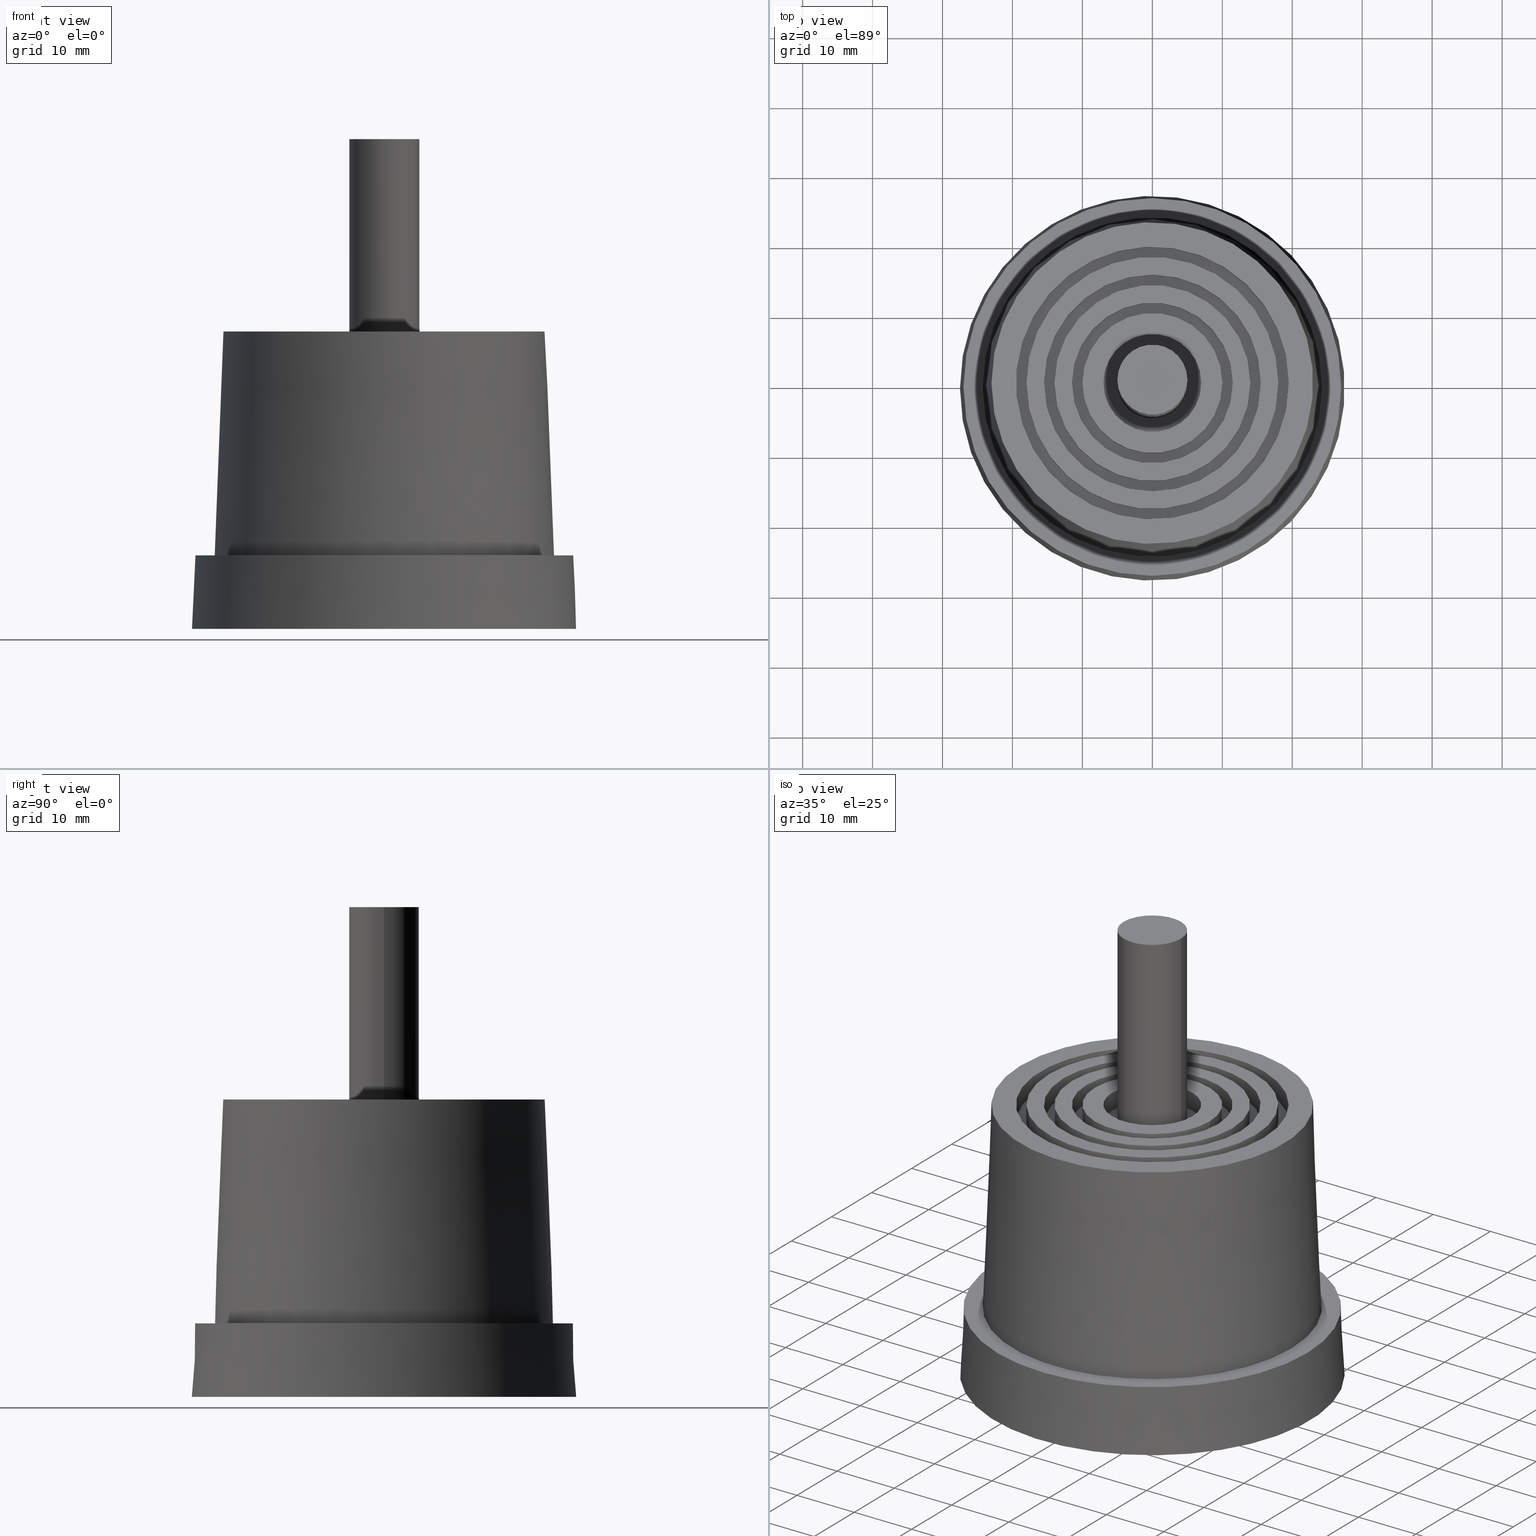
[diagram: canonical four-view strip — front | top / right | iso, engineering-drawing reading convention]
A machine part, canonical four-view strip (front | top / right | iso — engineering-drawing reading convention). The complete STEP part file that produces these views, byte-faithful:
ISO-10303-21;
HEADER;
/* Generated by software containing ST-Developer
 * from STEP Tools, Inc. (www.steptools.com) 
 */

FILE_DESCRIPTION(
/* description */ (''),
/* implementation_level */ '2;1');

FILE_NAME(
/* name */ '\\\\SYNOLOGYNAS\\web\\db2\\PRM10-4\\\X2\B3C4BA74\X0\\\DR_P
RM10-4.stp',
/* time_stamp */ '2023-04-18T11:59:53+09:00',
/* author */ ('user'),
/* organization */ (''),
/* preprocessor_version */ 'ST-DEVELOPER v15.6',
/* originating_system */ 'Autodesk Inventor 2015',
/* authorisation */ '');

FILE_SCHEMA (('AUTOMOTIVE_DESIGN { 1 0 10303 214 3 1 1 }'));
ENDSEC;

DATA;
#10=MECHANICAL_DESIGN_GEOMETRIC_PRESENTATION_REPRESENTATION('',(#13),#749);
#11=SHAPE_REPRESENTATION_RELATIONSHIP('SRR','None',#758,#12);
#12=ADVANCED_BREP_SHAPE_REPRESENTATION($,(#14),#748);
#13=STYLED_ITEM('',(#767),#14);
#14=MANIFOLD_SOLID_BREP('\X2\C194B9ACB4DC\X0\1',#413);
#15=CONICAL_SURFACE('',#482,24.25,2.2369790634377);
#16=CONICAL_SURFACE('',#487,27.5,2.72631099390626);
#17=PLANE('',#418);
#18=PLANE('',#426);
#19=PLANE('',#433);
#20=PLANE('',#440);
#21=PLANE('',#441);
#22=PLANE('',#443);
#23=PLANE('',#444);
#24=PLANE('',#447);
#25=PLANE('',#451);
#26=PLANE('',#459);
#27=PLANE('',#466);
#28=PLANE('',#473);
#29=PLANE('',#474);
#30=PLANE('',#476);
#31=PLANE('',#477);
#32=PLANE('',#480);
#33=PLANE('',#481);
#34=PLANE('',#484);
#35=PLANE('',#486);
#36=FACE_BOUND('',#109,.T.);
#37=FACE_BOUND('',#111,.T.);
#38=FACE_BOUND('',#113,.T.);
#39=FACE_BOUND('',#115,.T.);
#40=FACE_BOUND('',#117,.T.);
#41=FACE_BOUND('',#119,.T.);
#42=FACE_BOUND('',#121,.T.);
#43=FACE_BOUND('',#123,.T.);
#44=FACE_BOUND('',#125,.T.);
#45=FACE_BOUND('',#127,.T.);
#46=FACE_BOUND('',#129,.T.);
#47=FACE_BOUND('',#131,.T.);
#48=FACE_BOUND('',#133,.T.);
#49=FACE_BOUND('',#135,.T.);
#50=FACE_BOUND('',#137,.T.);
#51=FACE_BOUND('',#140,.T.);
#52=FACE_BOUND('',#142,.T.);
#53=FACE_BOUND('',#144,.T.);
#54=FACE_BOUND('',#146,.T.);
#55=FACE_BOUND('',#148,.T.);
#56=FACE_BOUND('',#150,.T.);
#57=FACE_BOUND('',#152,.T.);
#58=FACE_BOUND('',#154,.T.);
#59=FACE_BOUND('',#156,.T.);
#60=FACE_BOUND('',#158,.T.);
#61=FACE_BOUND('',#160,.T.);
#62=FACE_BOUND('',#162,.T.);
#63=FACE_BOUND('',#164,.T.);
#64=FACE_BOUND('',#166,.T.);
#65=FACE_BOUND('',#168,.T.);
#66=FACE_BOUND('',#171,.T.);
#67=FACE_BOUND('',#173,.T.);
#68=FACE_BOUND('',#175,.T.);
#69=FACE_BOUND('',#177,.T.);
#70=FACE_BOUND('',#179,.T.);
#71=FACE_OUTER_BOUND('',#108,.T.);
#72=FACE_OUTER_BOUND('',#110,.T.);
#73=FACE_OUTER_BOUND('',#112,.T.);
#74=FACE_OUTER_BOUND('',#114,.T.);
#75=FACE_OUTER_BOUND('',#116,.T.);
#76=FACE_OUTER_BOUND('',#118,.T.);
#77=FACE_OUTER_BOUND('',#120,.T.);
#78=FACE_OUTER_BOUND('',#122,.T.);
#79=FACE_OUTER_BOUND('',#124,.T.);
#80=FACE_OUTER_BOUND('',#126,.T.);
#81=FACE_OUTER_BOUND('',#128,.T.);
#82=FACE_OUTER_BOUND('',#130,.T.);
#83=FACE_OUTER_BOUND('',#132,.T.);
#84=FACE_OUTER_BOUND('',#134,.T.);
#85=FACE_OUTER_BOUND('',#136,.T.);
#86=FACE_OUTER_BOUND('',#138,.T.);
#87=FACE_OUTER_BOUND('',#139,.T.);
#88=FACE_OUTER_BOUND('',#141,.T.);
#89=FACE_OUTER_BOUND('',#143,.T.);
#90=FACE_OUTER_BOUND('',#145,.T.);
#91=FACE_OUTER_BOUND('',#147,.T.);
#92=FACE_OUTER_BOUND('',#149,.T.);
#93=FACE_OUTER_BOUND('',#151,.T.);
#94=FACE_OUTER_BOUND('',#153,.T.);
#95=FACE_OUTER_BOUND('',#155,.T.);
#96=FACE_OUTER_BOUND('',#157,.T.);
#97=FACE_OUTER_BOUND('',#159,.T.);
#98=FACE_OUTER_BOUND('',#161,.T.);
#99=FACE_OUTER_BOUND('',#163,.T.);
#100=FACE_OUTER_BOUND('',#165,.T.);
#101=FACE_OUTER_BOUND('',#167,.T.);
#102=FACE_OUTER_BOUND('',#169,.T.);
#103=FACE_OUTER_BOUND('',#170,.T.);
#104=FACE_OUTER_BOUND('',#172,.T.);
#105=FACE_OUTER_BOUND('',#174,.T.);
#106=FACE_OUTER_BOUND('',#176,.T.);
#107=FACE_OUTER_BOUND('',#178,.T.);
#108=EDGE_LOOP('',(#288));
#109=EDGE_LOOP('',(#289));
#110=EDGE_LOOP('',(#290));
#111=EDGE_LOOP('',(#291));
#112=EDGE_LOOP('',(#292));
#113=EDGE_LOOP('',(#293));
#114=EDGE_LOOP('',(#294));
#115=EDGE_LOOP('',(#295));
#116=EDGE_LOOP('',(#296));
#117=EDGE_LOOP('',(#297));
#118=EDGE_LOOP('',(#298));
#119=EDGE_LOOP('',(#299));
#120=EDGE_LOOP('',(#300));
#121=EDGE_LOOP('',(#301));
#122=EDGE_LOOP('',(#302));
#123=EDGE_LOOP('',(#303));
#124=EDGE_LOOP('',(#304));
#125=EDGE_LOOP('',(#305));
#126=EDGE_LOOP('',(#306));
#127=EDGE_LOOP('',(#307));
#128=EDGE_LOOP('',(#308));
#129=EDGE_LOOP('',(#309));
#130=EDGE_LOOP('',(#310));
#131=EDGE_LOOP('',(#311));
#132=EDGE_LOOP('',(#312));
#133=EDGE_LOOP('',(#313));
#134=EDGE_LOOP('',(#314));
#135=EDGE_LOOP('',(#315));
#136=EDGE_LOOP('',(#316));
#137=EDGE_LOOP('',(#317));
#138=EDGE_LOOP('',(#318));
#139=EDGE_LOOP('',(#319));
#140=EDGE_LOOP('',(#320));
#141=EDGE_LOOP('',(#321));
#142=EDGE_LOOP('',(#322));
#143=EDGE_LOOP('',(#323));
#144=EDGE_LOOP('',(#324));
#145=EDGE_LOOP('',(#325));
#146=EDGE_LOOP('',(#326));
#147=EDGE_LOOP('',(#327));
#148=EDGE_LOOP('',(#328));
#149=EDGE_LOOP('',(#329));
#150=EDGE_LOOP('',(#330));
#151=EDGE_LOOP('',(#331));
#152=EDGE_LOOP('',(#332));
#153=EDGE_LOOP('',(#333));
#154=EDGE_LOOP('',(#334));
#155=EDGE_LOOP('',(#335));
#156=EDGE_LOOP('',(#336));
#157=EDGE_LOOP('',(#337));
#158=EDGE_LOOP('',(#338));
#159=EDGE_LOOP('',(#339));
#160=EDGE_LOOP('',(#340));
#161=EDGE_LOOP('',(#341));
#162=EDGE_LOOP('',(#342));
#163=EDGE_LOOP('',(#343));
#164=EDGE_LOOP('',(#344));
#165=EDGE_LOOP('',(#345));
#166=EDGE_LOOP('',(#346));
#167=EDGE_LOOP('',(#347));
#168=EDGE_LOOP('',(#348));
#169=EDGE_LOOP('',(#349));
#170=EDGE_LOOP('',(#350));
#171=EDGE_LOOP('',(#351));
#172=EDGE_LOOP('',(#352));
#173=EDGE_LOOP('',(#353));
#174=EDGE_LOOP('',(#354));
#175=EDGE_LOOP('',(#355));
#176=EDGE_LOOP('',(#356));
#177=EDGE_LOOP('',(#357));
#178=EDGE_LOOP('',(#358));
#179=EDGE_LOOP('',(#359));
#180=CIRCLE('',#416,5.5);
#181=CIRCLE('',#417,5.5);
#182=CIRCLE('',#419,4.75);
#183=CIRCLE('',#421,8.5);
#184=CIRCLE('',#422,8.5);
#185=CIRCLE('',#424,11.5);
#186=CIRCLE('',#425,11.5);
#187=CIRCLE('',#428,14.5);
#188=CIRCLE('',#429,14.5);
#189=CIRCLE('',#431,17.5);
#190=CIRCLE('',#432,17.5);
#191=CIRCLE('',#435,20.5);
#192=CIRCLE('',#436,20.5);
#193=CIRCLE('',#438,23.5);
#194=CIRCLE('',#439,23.5);
#195=CIRCLE('',#442,27.5);
#196=CIRCLE('',#446,4.75);
#197=CIRCLE('',#449,7.);
#198=CIRCLE('',#450,7.);
#199=CIRCLE('',#452,5.);
#200=CIRCLE('',#454,10.);
#201=CIRCLE('',#455,10.);
#202=CIRCLE('',#457,11.5);
#203=CIRCLE('',#458,11.5);
#204=CIRCLE('',#461,14.);
#205=CIRCLE('',#462,14.);
#206=CIRCLE('',#464,15.5);
#207=CIRCLE('',#465,15.5);
#208=CIRCLE('',#468,18.);
#209=CIRCLE('',#469,18.);
#210=CIRCLE('',#471,19.5);
#211=CIRCLE('',#472,19.5);
#212=CIRCLE('',#475,23.);
#213=CIRCLE('',#479,5.);
#214=CIRCLE('',#483,24.25);
#215=CIRCLE('',#485,27.);
#216=VERTEX_POINT('',#638);
#217=VERTEX_POINT('',#640);
#218=VERTEX_POINT('',#643);
#219=VERTEX_POINT('',#646);
#220=VERTEX_POINT('',#648);
#221=VERTEX_POINT('',#651);
#222=VERTEX_POINT('',#653);
#223=VERTEX_POINT('',#657);
#224=VERTEX_POINT('',#659);
#225=VERTEX_POINT('',#662);
#226=VERTEX_POINT('',#664);
#227=VERTEX_POINT('',#668);
#228=VERTEX_POINT('',#670);
#229=VERTEX_POINT('',#673);
#230=VERTEX_POINT('',#675);
#231=VERTEX_POINT('',#679);
#232=VERTEX_POINT('',#684);
#233=VERTEX_POINT('',#688);
#234=VERTEX_POINT('',#690);
#235=VERTEX_POINT('',#693);
#236=VERTEX_POINT('',#696);
#237=VERTEX_POINT('',#698);
#238=VERTEX_POINT('',#701);
#239=VERTEX_POINT('',#703);
#240=VERTEX_POINT('',#707);
#241=VERTEX_POINT('',#709);
#242=VERTEX_POINT('',#712);
#243=VERTEX_POINT('',#714);
#244=VERTEX_POINT('',#718);
#245=VERTEX_POINT('',#720);
#246=VERTEX_POINT('',#723);
#247=VERTEX_POINT('',#725);
#248=VERTEX_POINT('',#729);
#249=VERTEX_POINT('',#734);
#250=VERTEX_POINT('',#739);
#251=VERTEX_POINT('',#742);
#252=EDGE_CURVE('',#216,#216,#180,.T.);
#253=EDGE_CURVE('',#217,#217,#181,.T.);
#254=EDGE_CURVE('',#218,#218,#182,.T.);
#255=EDGE_CURVE('',#219,#219,#183,.T.);
#256=EDGE_CURVE('',#220,#220,#184,.T.);
#257=EDGE_CURVE('',#221,#221,#185,.T.);
#258=EDGE_CURVE('',#222,#222,#186,.T.);
#259=EDGE_CURVE('',#223,#223,#187,.T.);
#260=EDGE_CURVE('',#224,#224,#188,.T.);
#261=EDGE_CURVE('',#225,#225,#189,.T.);
#262=EDGE_CURVE('',#226,#226,#190,.T.);
#263=EDGE_CURVE('',#227,#227,#191,.T.);
#264=EDGE_CURVE('',#228,#228,#192,.T.);
#265=EDGE_CURVE('',#229,#229,#193,.T.);
#266=EDGE_CURVE('',#230,#230,#194,.T.);
#267=EDGE_CURVE('',#231,#231,#195,.T.);
#268=EDGE_CURVE('',#232,#232,#196,.T.);
#269=EDGE_CURVE('',#233,#233,#197,.T.);
#270=EDGE_CURVE('',#234,#234,#198,.T.);
#271=EDGE_CURVE('',#235,#235,#199,.T.);
#272=EDGE_CURVE('',#236,#236,#200,.T.);
#273=EDGE_CURVE('',#237,#237,#201,.T.);
#274=EDGE_CURVE('',#238,#238,#202,.T.);
#275=EDGE_CURVE('',#239,#239,#203,.T.);
#276=EDGE_CURVE('',#240,#240,#204,.T.);
#277=EDGE_CURVE('',#241,#241,#205,.T.);
#278=EDGE_CURVE('',#242,#242,#206,.T.);
#279=EDGE_CURVE('',#243,#243,#207,.T.);
#280=EDGE_CURVE('',#244,#244,#208,.T.);
#281=EDGE_CURVE('',#245,#245,#209,.T.);
#282=EDGE_CURVE('',#246,#246,#210,.T.);
#283=EDGE_CURVE('',#247,#247,#211,.T.);
#284=EDGE_CURVE('',#248,#248,#212,.T.);
#285=EDGE_CURVE('',#249,#249,#213,.T.);
#286=EDGE_CURVE('',#250,#250,#214,.T.);
#287=EDGE_CURVE('',#251,#251,#215,.T.);
#288=ORIENTED_EDGE('',*,*,#252,.T.);
#289=ORIENTED_EDGE('',*,*,#253,.F.);
#290=ORIENTED_EDGE('',*,*,#252,.F.);
#291=ORIENTED_EDGE('',*,*,#254,.F.);
#292=ORIENTED_EDGE('',*,*,#255,.T.);
#293=ORIENTED_EDGE('',*,*,#256,.F.);
#294=ORIENTED_EDGE('',*,*,#257,.T.);
#295=ORIENTED_EDGE('',*,*,#258,.F.);
#296=ORIENTED_EDGE('',*,*,#257,.F.);
#297=ORIENTED_EDGE('',*,*,#255,.F.);
#298=ORIENTED_EDGE('',*,*,#259,.T.);
#299=ORIENTED_EDGE('',*,*,#260,.F.);
#300=ORIENTED_EDGE('',*,*,#261,.T.);
#301=ORIENTED_EDGE('',*,*,#262,.F.);
#302=ORIENTED_EDGE('',*,*,#261,.F.);
#303=ORIENTED_EDGE('',*,*,#259,.F.);
#304=ORIENTED_EDGE('',*,*,#263,.T.);
#305=ORIENTED_EDGE('',*,*,#264,.F.);
#306=ORIENTED_EDGE('',*,*,#265,.T.);
#307=ORIENTED_EDGE('',*,*,#266,.F.);
#308=ORIENTED_EDGE('',*,*,#265,.F.);
#309=ORIENTED_EDGE('',*,*,#263,.F.);
#310=ORIENTED_EDGE('',*,*,#267,.F.);
#311=ORIENTED_EDGE('',*,*,#266,.T.);
#312=ORIENTED_EDGE('',*,*,#264,.T.);
#313=ORIENTED_EDGE('',*,*,#262,.T.);
#314=ORIENTED_EDGE('',*,*,#260,.T.);
#315=ORIENTED_EDGE('',*,*,#258,.T.);
#316=ORIENTED_EDGE('',*,*,#254,.T.);
#317=ORIENTED_EDGE('',*,*,#268,.T.);
#318=ORIENTED_EDGE('',*,*,#268,.F.);
#319=ORIENTED_EDGE('',*,*,#269,.T.);
#320=ORIENTED_EDGE('',*,*,#270,.F.);
#321=ORIENTED_EDGE('',*,*,#269,.F.);
#322=ORIENTED_EDGE('',*,*,#271,.F.);
#323=ORIENTED_EDGE('',*,*,#272,.T.);
#324=ORIENTED_EDGE('',*,*,#273,.F.);
#325=ORIENTED_EDGE('',*,*,#274,.T.);
#326=ORIENTED_EDGE('',*,*,#275,.F.);
#327=ORIENTED_EDGE('',*,*,#274,.F.);
#328=ORIENTED_EDGE('',*,*,#272,.F.);
#329=ORIENTED_EDGE('',*,*,#276,.T.);
#330=ORIENTED_EDGE('',*,*,#277,.F.);
#331=ORIENTED_EDGE('',*,*,#278,.T.);
#332=ORIENTED_EDGE('',*,*,#279,.F.);
#333=ORIENTED_EDGE('',*,*,#278,.F.);
#334=ORIENTED_EDGE('',*,*,#276,.F.);
#335=ORIENTED_EDGE('',*,*,#280,.T.);
#336=ORIENTED_EDGE('',*,*,#281,.F.);
#337=ORIENTED_EDGE('',*,*,#282,.T.);
#338=ORIENTED_EDGE('',*,*,#283,.F.);
#339=ORIENTED_EDGE('',*,*,#282,.F.);
#340=ORIENTED_EDGE('',*,*,#280,.F.);
#341=ORIENTED_EDGE('',*,*,#284,.F.);
#342=ORIENTED_EDGE('',*,*,#283,.T.);
#343=ORIENTED_EDGE('',*,*,#281,.T.);
#344=ORIENTED_EDGE('',*,*,#279,.T.);
#345=ORIENTED_EDGE('',*,*,#277,.T.);
#346=ORIENTED_EDGE('',*,*,#275,.T.);
#347=ORIENTED_EDGE('',*,*,#271,.T.);
#348=ORIENTED_EDGE('',*,*,#285,.F.);
#349=ORIENTED_EDGE('',*,*,#285,.T.);
#350=ORIENTED_EDGE('',*,*,#273,.T.);
#351=ORIENTED_EDGE('',*,*,#270,.T.);
#352=ORIENTED_EDGE('',*,*,#286,.F.);
#353=ORIENTED_EDGE('',*,*,#284,.T.);
#354=ORIENTED_EDGE('',*,*,#287,.F.);
#355=ORIENTED_EDGE('',*,*,#286,.T.);
#356=ORIENTED_EDGE('',*,*,#256,.T.);
#357=ORIENTED_EDGE('',*,*,#253,.T.);
#358=ORIENTED_EDGE('',*,*,#267,.T.);
#359=ORIENTED_EDGE('',*,*,#287,.T.);
#360=CYLINDRICAL_SURFACE('',#415,5.5);
#361=CYLINDRICAL_SURFACE('',#420,8.5);
#362=CYLINDRICAL_SURFACE('',#423,11.5);
#363=CYLINDRICAL_SURFACE('',#427,14.5);
#364=CYLINDRICAL_SURFACE('',#430,17.5);
#365=CYLINDRICAL_SURFACE('',#434,20.5);
#366=CYLINDRICAL_SURFACE('',#437,23.5);
#367=CYLINDRICAL_SURFACE('',#445,4.75);
#368=CYLINDRICAL_SURFACE('',#448,7.);
#369=CYLINDRICAL_SURFACE('',#453,10.);
#370=CYLINDRICAL_SURFACE('',#456,11.5);
#371=CYLINDRICAL_SURFACE('',#460,14.);
#372=CYLINDRICAL_SURFACE('',#463,15.5);
#373=CYLINDRICAL_SURFACE('',#467,18.);
#374=CYLINDRICAL_SURFACE('',#470,19.5);
#375=CYLINDRICAL_SURFACE('',#478,5.);
#376=ADVANCED_FACE('',(#71,#36),#360,.F.);
#377=ADVANCED_FACE('',(#72,#37),#17,.F.);
#378=ADVANCED_FACE('',(#73,#38),#361,.T.);
#379=ADVANCED_FACE('',(#74,#39),#362,.F.);
#380=ADVANCED_FACE('',(#75,#40),#18,.F.);
#381=ADVANCED_FACE('',(#76,#41),#363,.T.);
#382=ADVANCED_FACE('',(#77,#42),#364,.F.);
#383=ADVANCED_FACE('',(#78,#43),#19,.F.);
#384=ADVANCED_FACE('',(#79,#44),#365,.T.);
#385=ADVANCED_FACE('',(#80,#45),#366,.F.);
#386=ADVANCED_FACE('',(#81,#46),#20,.F.);
#387=ADVANCED_FACE('',(#82,#47),#21,.F.);
#388=ADVANCED_FACE('',(#83,#48),#22,.F.);
#389=ADVANCED_FACE('',(#84,#49),#23,.F.);
#390=ADVANCED_FACE('',(#85,#50),#367,.F.);
#391=ADVANCED_FACE('',(#86),#24,.F.);
#392=ADVANCED_FACE('',(#87,#51),#368,.F.);
#393=ADVANCED_FACE('',(#88,#52),#25,.T.);
#394=ADVANCED_FACE('',(#89,#53),#369,.T.);
#395=ADVANCED_FACE('',(#90,#54),#370,.F.);
#396=ADVANCED_FACE('',(#91,#55),#26,.T.);
#397=ADVANCED_FACE('',(#92,#56),#371,.T.);
#398=ADVANCED_FACE('',(#93,#57),#372,.F.);
#399=ADVANCED_FACE('',(#94,#58),#27,.T.);
#400=ADVANCED_FACE('',(#95,#59),#373,.T.);
#401=ADVANCED_FACE('',(#96,#60),#374,.F.);
#402=ADVANCED_FACE('',(#97,#61),#28,.T.);
#403=ADVANCED_FACE('',(#98,#62),#29,.F.);
#404=ADVANCED_FACE('',(#99,#63),#30,.F.);
#405=ADVANCED_FACE('',(#100,#64),#31,.F.);
#406=ADVANCED_FACE('',(#101,#65),#375,.T.);
#407=ADVANCED_FACE('',(#102),#32,.T.);
#408=ADVANCED_FACE('',(#103,#66),#33,.F.);
#409=ADVANCED_FACE('',(#104,#67),#15,.T.);
#410=ADVANCED_FACE('',(#105,#68),#34,.F.);
#411=ADVANCED_FACE('',(#106,#69),#35,.F.);
#412=ADVANCED_FACE('',(#107,#70),#16,.T.);
#413=CLOSED_SHELL('',(#376,#377,#378,#379,#380,#381,#382,#383,#384,#385,
#386,#387,#388,#389,#390,#391,#392,#393,#394,#395,#396,#397,#398,#399,#400,
#401,#402,#403,#404,#405,#406,#407,#408,#409,#410,#411,#412));
#414=AXIS2_PLACEMENT_3D('placement',#636,#488,#489);
#415=AXIS2_PLACEMENT_3D('',#637,#490,#491);
#416=AXIS2_PLACEMENT_3D('',#639,#492,#493);
#417=AXIS2_PLACEMENT_3D('',#641,#494,#495);
#418=AXIS2_PLACEMENT_3D('',#642,#496,#497);
#419=AXIS2_PLACEMENT_3D('',#644,#498,#499);
#420=AXIS2_PLACEMENT_3D('',#645,#500,#501);
#421=AXIS2_PLACEMENT_3D('',#647,#502,#503);
#422=AXIS2_PLACEMENT_3D('',#649,#504,#505);
#423=AXIS2_PLACEMENT_3D('',#650,#506,#507);
#424=AXIS2_PLACEMENT_3D('',#652,#508,#509);
#425=AXIS2_PLACEMENT_3D('',#654,#510,#511);
#426=AXIS2_PLACEMENT_3D('',#655,#512,#513);
#427=AXIS2_PLACEMENT_3D('',#656,#514,#515);
#428=AXIS2_PLACEMENT_3D('',#658,#516,#517);
#429=AXIS2_PLACEMENT_3D('',#660,#518,#519);
#430=AXIS2_PLACEMENT_3D('',#661,#520,#521);
#431=AXIS2_PLACEMENT_3D('',#663,#522,#523);
#432=AXIS2_PLACEMENT_3D('',#665,#524,#525);
#433=AXIS2_PLACEMENT_3D('',#666,#526,#527);
#434=AXIS2_PLACEMENT_3D('',#667,#528,#529);
#435=AXIS2_PLACEMENT_3D('',#669,#530,#531);
#436=AXIS2_PLACEMENT_3D('',#671,#532,#533);
#437=AXIS2_PLACEMENT_3D('',#672,#534,#535);
#438=AXIS2_PLACEMENT_3D('',#674,#536,#537);
#439=AXIS2_PLACEMENT_3D('',#676,#538,#539);
#440=AXIS2_PLACEMENT_3D('',#677,#540,#541);
#441=AXIS2_PLACEMENT_3D('',#678,#542,#543);
#442=AXIS2_PLACEMENT_3D('',#680,#544,#545);
#443=AXIS2_PLACEMENT_3D('',#681,#546,#547);
#444=AXIS2_PLACEMENT_3D('',#682,#548,#549);
#445=AXIS2_PLACEMENT_3D('',#683,#550,#551);
#446=AXIS2_PLACEMENT_3D('',#685,#552,#553);
#447=AXIS2_PLACEMENT_3D('',#686,#554,#555);
#448=AXIS2_PLACEMENT_3D('',#687,#556,#557);
#449=AXIS2_PLACEMENT_3D('',#689,#558,#559);
#450=AXIS2_PLACEMENT_3D('',#691,#560,#561);
#451=AXIS2_PLACEMENT_3D('',#692,#562,#563);
#452=AXIS2_PLACEMENT_3D('',#694,#564,#565);
#453=AXIS2_PLACEMENT_3D('',#695,#566,#567);
#454=AXIS2_PLACEMENT_3D('',#697,#568,#569);
#455=AXIS2_PLACEMENT_3D('',#699,#570,#571);
#456=AXIS2_PLACEMENT_3D('',#700,#572,#573);
#457=AXIS2_PLACEMENT_3D('',#702,#574,#575);
#458=AXIS2_PLACEMENT_3D('',#704,#576,#577);
#459=AXIS2_PLACEMENT_3D('',#705,#578,#579);
#460=AXIS2_PLACEMENT_3D('',#706,#580,#581);
#461=AXIS2_PLACEMENT_3D('',#708,#582,#583);
#462=AXIS2_PLACEMENT_3D('',#710,#584,#585);
#463=AXIS2_PLACEMENT_3D('',#711,#586,#587);
#464=AXIS2_PLACEMENT_3D('',#713,#588,#589);
#465=AXIS2_PLACEMENT_3D('',#715,#590,#591);
#466=AXIS2_PLACEMENT_3D('',#716,#592,#593);
#467=AXIS2_PLACEMENT_3D('',#717,#594,#595);
#468=AXIS2_PLACEMENT_3D('',#719,#596,#597);
#469=AXIS2_PLACEMENT_3D('',#721,#598,#599);
#470=AXIS2_PLACEMENT_3D('',#722,#600,#601);
#471=AXIS2_PLACEMENT_3D('',#724,#602,#603);
#472=AXIS2_PLACEMENT_3D('',#726,#604,#605);
#473=AXIS2_PLACEMENT_3D('',#727,#606,#607);
#474=AXIS2_PLACEMENT_3D('',#728,#608,#609);
#475=AXIS2_PLACEMENT_3D('',#730,#610,#611);
#476=AXIS2_PLACEMENT_3D('',#731,#612,#613);
#477=AXIS2_PLACEMENT_3D('',#732,#614,#615);
#478=AXIS2_PLACEMENT_3D('',#733,#616,#617);
#479=AXIS2_PLACEMENT_3D('',#735,#618,#619);
#480=AXIS2_PLACEMENT_3D('',#736,#620,#621);
#481=AXIS2_PLACEMENT_3D('',#737,#622,#623);
#482=AXIS2_PLACEMENT_3D('',#738,#624,#625);
#483=AXIS2_PLACEMENT_3D('',#740,#626,#627);
#484=AXIS2_PLACEMENT_3D('',#741,#628,#629);
#485=AXIS2_PLACEMENT_3D('',#743,#630,#631);
#486=AXIS2_PLACEMENT_3D('',#744,#632,#633);
#487=AXIS2_PLACEMENT_3D('',#745,#634,#635);
#488=DIRECTION('axis',(0.,0.,1.));
#489=DIRECTION('refdir',(1.,0.,0.));
#490=DIRECTION('center_axis',(0.,0.,1.));
#491=DIRECTION('ref_axis',(1.,0.,0.));
#492=DIRECTION('center_axis',(0.,0.,1.));
#493=DIRECTION('ref_axis',(1.,0.,0.));
#494=DIRECTION('center_axis',(0.,0.,1.));
#495=DIRECTION('ref_axis',(1.,0.,0.));
#496=DIRECTION('center_axis',(0.,0.,1.));
#497=DIRECTION('ref_axis',(1.,0.,0.));
#498=DIRECTION('center_axis',(0.,0.,-1.));
#499=DIRECTION('ref_axis',(1.,0.,0.));
#500=DIRECTION('center_axis',(0.,0.,1.));
#501=DIRECTION('ref_axis',(1.,0.,0.));
#502=DIRECTION('center_axis',(0.,0.,-1.));
#503=DIRECTION('ref_axis',(1.,0.,0.));
#504=DIRECTION('center_axis',(0.,0.,-1.));
#505=DIRECTION('ref_axis',(1.,0.,0.));
#506=DIRECTION('center_axis',(0.,0.,1.));
#507=DIRECTION('ref_axis',(1.,0.,0.));
#508=DIRECTION('center_axis',(0.,0.,1.));
#509=DIRECTION('ref_axis',(1.,0.,0.));
#510=DIRECTION('center_axis',(0.,0.,1.));
#511=DIRECTION('ref_axis',(1.,0.,0.));
#512=DIRECTION('center_axis',(0.,0.,1.));
#513=DIRECTION('ref_axis',(1.,0.,0.));
#514=DIRECTION('center_axis',(0.,0.,1.));
#515=DIRECTION('ref_axis',(1.,0.,0.));
#516=DIRECTION('center_axis',(0.,0.,-1.));
#517=DIRECTION('ref_axis',(1.,0.,0.));
#518=DIRECTION('center_axis',(0.,0.,-1.));
#519=DIRECTION('ref_axis',(1.,0.,0.));
#520=DIRECTION('center_axis',(0.,0.,1.));
#521=DIRECTION('ref_axis',(1.,0.,0.));
#522=DIRECTION('center_axis',(0.,0.,1.));
#523=DIRECTION('ref_axis',(1.,0.,0.));
#524=DIRECTION('center_axis',(0.,0.,1.));
#525=DIRECTION('ref_axis',(1.,0.,0.));
#526=DIRECTION('center_axis',(0.,0.,1.));
#527=DIRECTION('ref_axis',(1.,0.,0.));
#528=DIRECTION('center_axis',(0.,0.,1.));
#529=DIRECTION('ref_axis',(1.,0.,0.));
#530=DIRECTION('center_axis',(0.,0.,-1.));
#531=DIRECTION('ref_axis',(1.,0.,0.));
#532=DIRECTION('center_axis',(0.,0.,-1.));
#533=DIRECTION('ref_axis',(1.,0.,0.));
#534=DIRECTION('center_axis',(0.,0.,1.));
#535=DIRECTION('ref_axis',(1.,0.,0.));
#536=DIRECTION('center_axis',(0.,0.,1.));
#537=DIRECTION('ref_axis',(1.,0.,0.));
#538=DIRECTION('center_axis',(0.,0.,1.));
#539=DIRECTION('ref_axis',(1.,0.,0.));
#540=DIRECTION('center_axis',(0.,0.,1.));
#541=DIRECTION('ref_axis',(1.,0.,0.));
#542=DIRECTION('center_axis',(0.,0.,1.));
#543=DIRECTION('ref_axis',(1.,0.,0.));
#544=DIRECTION('center_axis',(0.,0.,1.));
#545=DIRECTION('ref_axis',(-1.,0.,0.));
#546=DIRECTION('center_axis',(0.,0.,1.));
#547=DIRECTION('ref_axis',(1.,0.,0.));
#548=DIRECTION('center_axis',(0.,0.,1.));
#549=DIRECTION('ref_axis',(1.,0.,0.));
#550=DIRECTION('center_axis',(0.,0.,1.));
#551=DIRECTION('ref_axis',(1.,0.,0.));
#552=DIRECTION('center_axis',(0.,0.,1.));
#553=DIRECTION('ref_axis',(1.,0.,0.));
#554=DIRECTION('center_axis',(0.,0.,1.));
#555=DIRECTION('ref_axis',(1.,0.,0.));
#556=DIRECTION('center_axis',(0.,0.,-1.));
#557=DIRECTION('ref_axis',(-1.,0.,0.));
#558=DIRECTION('center_axis',(0.,0.,-1.));
#559=DIRECTION('ref_axis',(-1.,0.,0.));
#560=DIRECTION('center_axis',(0.,0.,-1.));
#561=DIRECTION('ref_axis',(-1.,0.,0.));
#562=DIRECTION('center_axis',(0.,0.,1.));
#563=DIRECTION('ref_axis',(1.,0.,0.));
#564=DIRECTION('center_axis',(0.,0.,1.));
#565=DIRECTION('ref_axis',(-1.,0.,0.));
#566=DIRECTION('center_axis',(0.,0.,-1.));
#567=DIRECTION('ref_axis',(-1.,0.,0.));
#568=DIRECTION('center_axis',(0.,0.,1.));
#569=DIRECTION('ref_axis',(-1.,0.,0.));
#570=DIRECTION('center_axis',(0.,0.,1.));
#571=DIRECTION('ref_axis',(-1.,0.,0.));
#572=DIRECTION('center_axis',(0.,0.,-1.));
#573=DIRECTION('ref_axis',(-1.,0.,0.));
#574=DIRECTION('center_axis',(0.,0.,-1.));
#575=DIRECTION('ref_axis',(-1.,0.,0.));
#576=DIRECTION('center_axis',(0.,0.,-1.));
#577=DIRECTION('ref_axis',(-1.,0.,0.));
#578=DIRECTION('center_axis',(0.,0.,1.));
#579=DIRECTION('ref_axis',(1.,0.,0.));
#580=DIRECTION('center_axis',(0.,0.,-1.));
#581=DIRECTION('ref_axis',(-1.,0.,0.));
#582=DIRECTION('center_axis',(0.,0.,1.));
#583=DIRECTION('ref_axis',(-1.,0.,0.));
#584=DIRECTION('center_axis',(0.,0.,1.));
#585=DIRECTION('ref_axis',(-1.,0.,0.));
#586=DIRECTION('center_axis',(0.,0.,-1.));
#587=DIRECTION('ref_axis',(-1.,0.,0.));
#588=DIRECTION('center_axis',(0.,0.,-1.));
#589=DIRECTION('ref_axis',(-1.,0.,0.));
#590=DIRECTION('center_axis',(0.,0.,-1.));
#591=DIRECTION('ref_axis',(-1.,0.,0.));
#592=DIRECTION('center_axis',(0.,0.,1.));
#593=DIRECTION('ref_axis',(1.,0.,0.));
#594=DIRECTION('center_axis',(0.,0.,-1.));
#595=DIRECTION('ref_axis',(-1.,0.,0.));
#596=DIRECTION('center_axis',(0.,0.,1.));
#597=DIRECTION('ref_axis',(-1.,0.,0.));
#598=DIRECTION('center_axis',(0.,0.,1.));
#599=DIRECTION('ref_axis',(-1.,0.,0.));
#600=DIRECTION('center_axis',(0.,0.,-1.));
#601=DIRECTION('ref_axis',(-1.,0.,0.));
#602=DIRECTION('center_axis',(0.,0.,-1.));
#603=DIRECTION('ref_axis',(-1.,0.,0.));
#604=DIRECTION('center_axis',(0.,0.,-1.));
#605=DIRECTION('ref_axis',(-1.,0.,0.));
#606=DIRECTION('center_axis',(0.,0.,1.));
#607=DIRECTION('ref_axis',(1.,0.,0.));
#608=DIRECTION('center_axis',(0.,0.,-1.));
#609=DIRECTION('ref_axis',(-1.,0.,0.));
#610=DIRECTION('center_axis',(0.,0.,-1.));
#611=DIRECTION('ref_axis',(-1.,0.,0.));
#612=DIRECTION('center_axis',(0.,0.,-1.));
#613=DIRECTION('ref_axis',(-1.,0.,0.));
#614=DIRECTION('center_axis',(0.,0.,-1.));
#615=DIRECTION('ref_axis',(-1.,0.,0.));
#616=DIRECTION('center_axis',(0.,0.,1.));
#617=DIRECTION('ref_axis',(-1.,0.,0.));
#618=DIRECTION('center_axis',(0.,0.,1.));
#619=DIRECTION('ref_axis',(-1.,0.,0.));
#620=DIRECTION('center_axis',(0.,0.,1.));
#621=DIRECTION('ref_axis',(1.,0.,0.));
#622=DIRECTION('center_axis',(0.,0.,-1.));
#623=DIRECTION('ref_axis',(-1.,0.,0.));
#624=DIRECTION('center_axis',(0.,0.,-1.));
#625=DIRECTION('ref_axis',(-1.,0.,0.));
#626=DIRECTION('center_axis',(0.,0.,-1.));
#627=DIRECTION('ref_axis',(-1.,0.,0.));
#628=DIRECTION('center_axis',(0.,0.,-1.));
#629=DIRECTION('ref_axis',(-1.,0.,0.));
#630=DIRECTION('center_axis',(0.,0.,-1.));
#631=DIRECTION('ref_axis',(-1.,0.,0.));
#632=DIRECTION('center_axis',(0.,0.,1.));
#633=DIRECTION('ref_axis',(1.,0.,0.));
#634=DIRECTION('center_axis',(0.,0.,-1.));
#635=DIRECTION('ref_axis',(-1.,0.,0.));
#636=CARTESIAN_POINT('',(0.,0.,0.));
#637=CARTESIAN_POINT('Origin',(0.,0.,0.));
#638=CARTESIAN_POINT('',(-5.5,6.73555739531044E-16,2.8));
#639=CARTESIAN_POINT('Origin',(0.,0.,2.8));
#640=CARTESIAN_POINT('',(-5.5,6.73555739531044E-16,0.));
#641=CARTESIAN_POINT('Origin',(0.,0.,0.));
#642=CARTESIAN_POINT('Origin',(2.24345254752611E-16,-8.41078048958452E-17,
2.8));
#643=CARTESIAN_POINT('',(-4.75,5.81707229594993E-16,2.8));
#644=CARTESIAN_POINT('Origin',(0.,0.,2.8));
#645=CARTESIAN_POINT('Origin',(0.,0.,0.));
#646=CARTESIAN_POINT('',(-8.5,1.04094977927525E-15,2.8));
#647=CARTESIAN_POINT('Origin',(0.,0.,2.8));
#648=CARTESIAN_POINT('',(-8.5,1.04094977927525E-15,0.));
#649=CARTESIAN_POINT('Origin',(0.,0.,0.));
#650=CARTESIAN_POINT('Origin',(0.,0.,0.));
#651=CARTESIAN_POINT('',(-11.5,1.40834381901946E-15,2.8));
#652=CARTESIAN_POINT('Origin',(0.,0.,2.8));
#653=CARTESIAN_POINT('',(-11.5,1.40834381901946E-15,0.));
#654=CARTESIAN_POINT('Origin',(0.,0.,0.));
#655=CARTESIAN_POINT('Origin',(4.39165760171957E-16,1.60901887626834E-16,
2.8));
#656=CARTESIAN_POINT('Origin',(0.,0.,0.));
#657=CARTESIAN_POINT('',(-14.5,1.77573785876366E-15,2.8));
#658=CARTESIAN_POINT('Origin',(0.,0.,2.8));
#659=CARTESIAN_POINT('',(-14.5,1.77573785876366E-15,0.));
#660=CARTESIAN_POINT('Origin',(0.,0.,0.));
#661=CARTESIAN_POINT('Origin',(0.,0.,0.));
#662=CARTESIAN_POINT('',(-17.5,2.14313189850787E-15,2.8));
#663=CARTESIAN_POINT('Origin',(0.,0.,2.8));
#664=CARTESIAN_POINT('',(-17.5,2.14313189850787E-15,0.));
#665=CARTESIAN_POINT('Origin',(0.,0.,0.));
#666=CARTESIAN_POINT('Origin',(1.02447853411387E-15,-4.22942104619107E-16,
2.8));
#667=CARTESIAN_POINT('Origin',(0.,0.,0.));
#668=CARTESIAN_POINT('',(-20.5,2.51052593825207E-15,2.8));
#669=CARTESIAN_POINT('Origin',(0.,0.,2.8));
#670=CARTESIAN_POINT('',(-20.5,2.51052593825207E-15,0.));
#671=CARTESIAN_POINT('Origin',(0.,0.,0.));
#672=CARTESIAN_POINT('Origin',(0.,0.,0.));
#673=CARTESIAN_POINT('',(-23.5,2.87791997799628E-15,2.8));
#674=CARTESIAN_POINT('Origin',(0.,0.,2.8));
#675=CARTESIAN_POINT('',(-23.5,2.87791997799628E-15,0.));
#676=CARTESIAN_POINT('Origin',(0.,0.,0.));
#677=CARTESIAN_POINT('Origin',(2.12956798334393E-15,-3.14956886418484E-16,
2.8));
#678=CARTESIAN_POINT('Origin',(0.,0.,0.));
#679=CARTESIAN_POINT('',(-27.5,0.,0.));
#680=CARTESIAN_POINT('Origin',(0.,0.,0.));
#681=CARTESIAN_POINT('Origin',(0.,0.,0.));
#682=CARTESIAN_POINT('Origin',(0.,0.,0.));
#683=CARTESIAN_POINT('Origin',(0.,0.,0.));
#684=CARTESIAN_POINT('',(-4.75,5.81707229594993E-16,13.5));
#685=CARTESIAN_POINT('Origin',(0.,0.,13.5));
#686=CARTESIAN_POINT('Origin',(4.84756024662494E-17,0.,13.5));
#687=CARTESIAN_POINT('Origin',(0.,0.,42.5));
#688=CARTESIAN_POINT('',(7.,8.57252759403147E-16,39.7));
#689=CARTESIAN_POINT('Origin',(0.,0.,39.7));
#690=CARTESIAN_POINT('',(7.,8.57252759403147E-16,42.5));
#691=CARTESIAN_POINT('Origin',(0.,0.,42.5));
#692=CARTESIAN_POINT('Origin',(-7.14377299502623E-17,0.,39.7));
#693=CARTESIAN_POINT('',(5.,6.12323399573677E-16,39.7));
#694=CARTESIAN_POINT('Origin',(0.,0.,39.7));
#695=CARTESIAN_POINT('Origin',(0.,0.,42.5));
#696=CARTESIAN_POINT('',(10.,1.22464679914735E-15,39.7));
#697=CARTESIAN_POINT('Origin',(0.,0.,39.7));
#698=CARTESIAN_POINT('',(10.,1.22464679914735E-15,42.5));
#699=CARTESIAN_POINT('Origin',(0.,0.,42.5));
#700=CARTESIAN_POINT('Origin',(0.,0.,42.5));
#701=CARTESIAN_POINT('',(11.5,1.40834381901946E-15,39.7));
#702=CARTESIAN_POINT('Origin',(0.,0.,39.7));
#703=CARTESIAN_POINT('',(11.5,1.40834381901946E-15,42.5));
#704=CARTESIAN_POINT('Origin',(0.,0.,42.5));
#705=CARTESIAN_POINT('Origin',(-4.39165760171956E-16,-1.60901887626834E-16,
39.7));
#706=CARTESIAN_POINT('Origin',(0.,0.,42.5));
#707=CARTESIAN_POINT('',(14.,1.71450551880629E-15,39.7));
#708=CARTESIAN_POINT('Origin',(0.,0.,39.7));
#709=CARTESIAN_POINT('',(14.,1.71450551880629E-15,42.5));
#710=CARTESIAN_POINT('Origin',(0.,0.,42.5));
#711=CARTESIAN_POINT('Origin',(0.,0.,42.5));
#712=CARTESIAN_POINT('',(15.5,1.8982025386784E-15,39.7));
#713=CARTESIAN_POINT('Origin',(0.,0.,39.7));
#714=CARTESIAN_POINT('',(15.5,1.8982025386784E-15,42.5));
#715=CARTESIAN_POINT('Origin',(0.,0.,42.5));
#716=CARTESIAN_POINT('Origin',(-1.11321410370721E-15,0.,39.7));
#717=CARTESIAN_POINT('Origin',(0.,0.,42.5));
#718=CARTESIAN_POINT('',(18.,2.20436423846524E-15,39.7));
#719=CARTESIAN_POINT('Origin',(0.,0.,39.7));
#720=CARTESIAN_POINT('',(18.,2.20436423846524E-15,42.5));
#721=CARTESIAN_POINT('Origin',(0.,0.,42.5));
#722=CARTESIAN_POINT('Origin',(0.,0.,42.5));
#723=CARTESIAN_POINT('',(19.5,2.38806125833734E-15,39.7));
#724=CARTESIAN_POINT('Origin',(0.,0.,39.7));
#725=CARTESIAN_POINT('',(19.5,2.38806125833734E-15,42.5));
#726=CARTESIAN_POINT('Origin',(0.,0.,42.5));
#727=CARTESIAN_POINT('Origin',(-9.58131959305996E-16,3.79563427222276E-16,
39.7));
#728=CARTESIAN_POINT('Origin',(0.,0.,42.5));
#729=CARTESIAN_POINT('',(-23.,0.,42.5));
#730=CARTESIAN_POINT('Origin',(0.,0.,42.5));
#731=CARTESIAN_POINT('Origin',(0.,0.,42.5));
#732=CARTESIAN_POINT('Origin',(0.,0.,42.5));
#733=CARTESIAN_POINT('Origin',(0.,0.,42.5));
#734=CARTESIAN_POINT('',(5.,6.12323399573677E-16,70.));
#735=CARTESIAN_POINT('Origin',(0.,0.,70.));
#736=CARTESIAN_POINT('Origin',(-2.36064120735332E-16,9.25185853854297E-17,
70.));
#737=CARTESIAN_POINT('Origin',(0.,0.,42.5));
#738=CARTESIAN_POINT('Origin',(0.,0.,10.5));
#739=CARTESIAN_POINT('',(-24.25,0.,10.5));
#740=CARTESIAN_POINT('Origin',(0.,0.,10.5));
#741=CARTESIAN_POINT('Origin',(0.,0.,10.5));
#742=CARTESIAN_POINT('',(-27.,0.,10.5));
#743=CARTESIAN_POINT('Origin',(0.,0.,10.5));
#744=CARTESIAN_POINT('Origin',(0.,0.,0.));
#745=CARTESIAN_POINT('Origin',(0.,0.,0.));
#746=UNCERTAINTY_MEASURE_WITH_UNIT(LENGTH_MEASURE(0.01),#750,
'DISTANCE_ACCURACY_VALUE',
'Maximum model space distance between geometric entities at asserted c
onnectivities');
#747=UNCERTAINTY_MEASURE_WITH_UNIT(LENGTH_MEASURE(1.E-6),#750,
'DISTANCE_ACCURACY_VALUE',
'Maximum model space distance between geometric entities at asserted c
onnectivities');
#748=(
GEOMETRIC_REPRESENTATION_CONTEXT(3)
GLOBAL_UNCERTAINTY_ASSIGNED_CONTEXT((#746))
GLOBAL_UNIT_ASSIGNED_CONTEXT((#750,#753,#751))
REPRESENTATION_CONTEXT('','3D')
);
#749=(
GEOMETRIC_REPRESENTATION_CONTEXT(3)
GLOBAL_UNCERTAINTY_ASSIGNED_CONTEXT((#747))
GLOBAL_UNIT_ASSIGNED_CONTEXT((#750,#753,#751))
REPRESENTATION_CONTEXT('','3D')
);
#750=(
LENGTH_UNIT()
NAMED_UNIT(*)
SI_UNIT(.MILLI.,.METRE.)
);
#751=(
NAMED_UNIT(*)
SI_UNIT($,.STERADIAN.)
SOLID_ANGLE_UNIT()
);
#752=DIMENSIONAL_EXPONENTS(0.,0.,0.,0.,0.,0.,0.);
#753=(
CONVERSION_BASED_UNIT('degree',#755)
NAMED_UNIT(#752)
PLANE_ANGLE_UNIT()
);
#754=(
NAMED_UNIT(*)
PLANE_ANGLE_UNIT()
SI_UNIT($,.RADIAN.)
);
#755=PLANE_ANGLE_MEASURE_WITH_UNIT(PLANE_ANGLE_MEASURE(0.01745329252),#754);
#756=SHAPE_DEFINITION_REPRESENTATION(#757,#758);
#757=PRODUCT_DEFINITION_SHAPE('',$,#760);
#758=SHAPE_REPRESENTATION('',(#414),#748);
#759=PRODUCT_DEFINITION_CONTEXT('part definition',#764,'design');
#760=PRODUCT_DEFINITION('DR_PRM10-4','DR_PRM10-4',#761,#759);
#761=PRODUCT_DEFINITION_FORMATION('',$,#766);
#762=PRODUCT_RELATED_PRODUCT_CATEGORY('DR_PRM10-4','DR_PRM10-4',(#766));
#763=APPLICATION_PROTOCOL_DEFINITION('international standard',
'automotive_design',2009,#764);
#764=APPLICATION_CONTEXT(
'Core Data for Automotive Mechanical Design Process');
#765=PRODUCT_CONTEXT('part definition',#764,'mechanical');
#766=PRODUCT('DR_PRM10-4','DR_PRM10-4',$,(#765));
#767=PRESENTATION_STYLE_ASSIGNMENT((#768));
#768=SURFACE_STYLE_USAGE(.BOTH.,#769);
#769=SURFACE_SIDE_STYLE($,(#770));
#770=SURFACE_STYLE_FILL_AREA(#771);
#771=FILL_AREA_STYLE($,(#772));
#772=FILL_AREA_STYLE_COLOUR($,#773);
#773=COLOUR_RGB('',1.,1.,1.);
ENDSEC;
END-ISO-10303-21;
